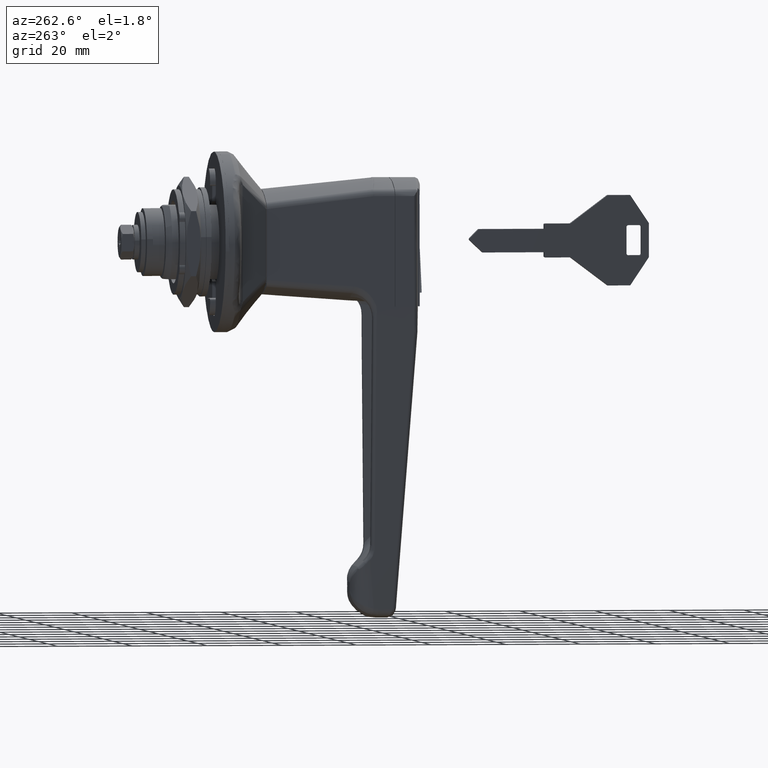
[diagram: clean part render]
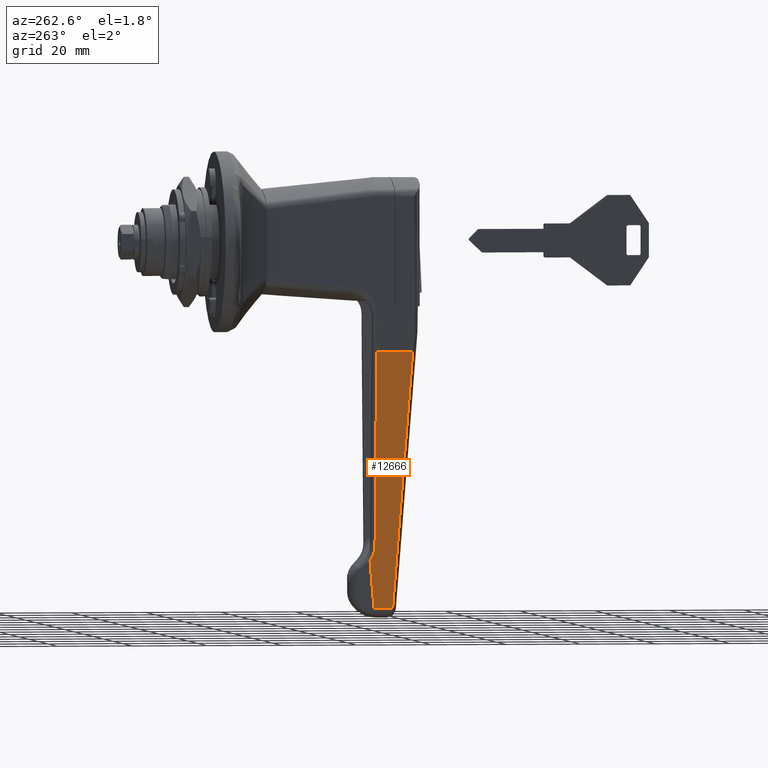
[diagram: same view with one face highlighted and labeled with its STEP entity id]
A machine part, auxiliary view. The second image highlights one B-rep face of the part: STEP entity #12666.
In plain terms, the highlighted face is a freeform B-spline surface patch.
Its self-contained STEP definition (entity closure, byte-faithful):
#6666=CARTESIAN_POINT('',(-42.0,12.073825769527300,-28.897936895261701));
#6667=VERTEX_POINT('',#6666);
#6727=CARTESIAN_POINT('',(-42.0,8.694515463715879,-80.579964860897306));
#6728=VERTEX_POINT('',#6727);
#6742=CARTESIAN_POINT('',(-42.0,12.073825769527300,-28.897936895261701));
#6743=CARTESIAN_POINT('',(-42.0,8.694515463715879,-80.579964860897306));
#6744=QUASI_UNIFORM_CURVE('',1,(#6742,#6743),.UNSPECIFIED.,.F.,.U.);
#6745=EDGE_CURVE('',#6667,#6728,#6744,.T.);
#6816=CARTESIAN_POINT('',(-40.691652699709749,8.428069505302149,-84.654899160476404));
#6817=VERTEX_POINT('',#6816);
#6833=CARTESIAN_POINT('',(-42.0,8.694515463715970,-80.579964860897306));
#6834=CARTESIAN_POINT('',(-42.0,8.547558896826997,-82.827468852060392));
#6835=CARTESIAN_POINT('',(-40.691652699709799,8.428069505302180,-84.654899160476404));
#6843=(BOUNDED_CURVE()B_SPLINE_CURVE(2,(#6833,#6834,#6835),.UNSPECIFIED.,.F.,.U.)CURVE()GEOMETRIC_REPRESENTATION_ITEM()QUASI_UNIFORM_CURVE()RATIONAL_B_SPLINE_CURVE((1.0,0.952127418682943,1.0))REPRESENTATION_ITEM(''));
#6844=EDGE_CURVE('',#6728,#6817,#6843,.T.);
#9193=CARTESIAN_POINT('',(-41.857309074168249,7.601217082741380,-97.300500232609494));
#9194=VERTEX_POINT('',#9193);
#9349=CARTESIAN_POINT('',(-43.0,7.592145216312200,-97.439242287070698));
#9350=VERTEX_POINT('',#9349);
#9364=CARTESIAN_POINT('',(-41.857309074168249,7.601217082741321,-97.300500232609409));
#9365=CARTESIAN_POINT('',(-42.044944047653502,7.598196396070007,-97.346697592098323));
#9366=CARTESIAN_POINT('',(-42.423050191288212,7.593675894850305,-97.415832607623116));
#9367=CARTESIAN_POINT('',(-42.806731902380577,7.592145216312201,-97.439242287070712));
#9368=CARTESIAN_POINT('',(-43.0,7.592145216312200,-97.439242287070698));
#9369=B_SPLINE_CURVE_WITH_KNOTS('',3,(#9364,#9365,#9366,#9367,#9368),.UNSPECIFIED.,.F.,.U.,(4,1,4),(0.0,0.500000000000000,1.0),.UNSPECIFIED.);
#9370=EDGE_CURVE('',#9194,#9350,#9369,.T.);
#9400=CARTESIAN_POINT('',(-46.810766094548299,7.592145216312200,-97.439242287070698));
#9401=VERTEX_POINT('',#9400);
#9431=CARTESIAN_POINT('',(-43.0,7.592145216312200,-97.439242287070698));
#9432=CARTESIAN_POINT('',(-46.810766094548299,7.592145216312200,-97.439242287070698));
#9433=QUASI_UNIFORM_CURVE('',1,(#9431,#9432),.UNSPECIFIED.,.F.,.U.);
#9434=EDGE_CURVE('',#9350,#9401,#9433,.T.);
#9697=CARTESIAN_POINT('',(-46.852808272678203,7.607287954509580,-97.207654374694698));
#9698=VERTEX_POINT('',#9697);
#9712=CARTESIAN_POINT('',(-46.810766094548299,7.592145216312200,-97.439242287070698));
#9713=CARTESIAN_POINT('',(-46.833181107994022,7.597093499282265,-97.363564922254270));
#9714=CARTESIAN_POINT('',(-46.847095688982492,7.602142254482201,-97.286350969162669));
#9715=CARTESIAN_POINT('',(-46.852808272678203,7.607287954509570,-97.207654374694911));
#9716=QUASI_UNIFORM_CURVE('',3,(#9712,#9713,#9714,#9715),.UNSPECIFIED.,.F.,.U.);
#9717=EDGE_CURVE('',#9401,#9698,#9716,.T.);
#10441=CARTESIAN_POINT('',(-40.691652699709671,8.428069505302171,-84.654899160476162));
#10442=CARTESIAN_POINT('',(-40.794435133139793,8.355161308735349,-85.769932440317476));
#10443=CARTESIAN_POINT('',(-40.897217566569893,8.282253112168529,-86.884965720158775));
#10444=CARTESIAN_POINT('',(-41.0,8.209344915601710,-87.999999000000088));
#10445=CARTESIAN_POINT('',(-41.285769691389469,8.006635637981608,-91.100166077536528));
#10446=CARTESIAN_POINT('',(-41.571539382778859,7.803926360361499,-94.200333155072897));
#10447=CARTESIAN_POINT('',(-41.857309074168157,7.601217082741362,-97.300500232609295));
#10448=B_SPLINE_CURVE_WITH_KNOTS('',3,(#10441,#10442,#10443,#10444,#10445,#10446,#10447),.UNSPECIFIED.,.F.,.U.,(4,3,4),(0.435166360910611,0.473723399625362,0.580924919249761),.UNSPECIFIED.);
#10449=EDGE_CURVE('',#6817,#9194,#10448,.T.);
#10964=CARTESIAN_POINT('',(-51.636799094111687,12.073825769527300,-28.897936895261701));
#10965=VERTEX_POINT('',#10964);
#11126=CARTESIAN_POINT('',(-46.852808272678203,7.607287954509580,-97.207654374694698));
#11127=CARTESIAN_POINT('',(-49.346518719111984,9.853537041845728,-62.854281158317264));
#11128=CARTESIAN_POINT('',(-51.636799094111673,12.073825769527280,-28.897936895261850));
#11136=(BOUNDED_CURVE()B_SPLINE_CURVE(2,(#11126,#11127,#11128),.UNSPECIFIED.,.F.,.U.)CURVE()GEOMETRIC_REPRESENTATION_ITEM()QUASI_UNIFORM_CURVE()RATIONAL_B_SPLINE_CURVE((1.0,0.999266857121281,1.0))REPRESENTATION_ITEM(''));
#11137=EDGE_CURVE('',#9698,#10965,#11136,.T.);
#12647=CARTESIAN_POINT('',(-52.183508851600337,12.297685646391519,-25.474299712081610));
#12648=CARTESIAN_POINT('',(-52.183508851600337,7.368285499725391,-100.862877019022700));
#12649=CARTESIAN_POINT('',(-40.144944018650683,12.297685646391519,-25.474299712081610));
#12650=CARTESIAN_POINT('',(-40.144944018650683,7.368285499725391,-100.862877019022700));
#12651=B_SPLINE_SURFACE_WITH_KNOTS('',1,1,((#12647,#12649),(#12648,#12650)),.UNSPECIFIED.,.F.,.F.,.U.,(2,2),(2,2),(0.0,75.549563692787686),(0.0,12.038564832949660),.UNSPECIFIED.);
#12652=CARTESIAN_POINT('',(-42.0,12.073825769527300,-28.897936895261701));
#12653=CARTESIAN_POINT('',(-51.636799094111687,12.073825769527300,-28.897936895261701));
#12654=QUASI_UNIFORM_CURVE('',1,(#12652,#12653),.UNSPECIFIED.,.F.,.U.);
#12655=EDGE_CURVE('',#6667,#10965,#12654,.T.);
#12656=ORIENTED_EDGE('',*,*,#12655,.F.);
#12657=ORIENTED_EDGE('',*,*,#6745,.T.);
#12658=ORIENTED_EDGE('',*,*,#6844,.T.);
#12659=ORIENTED_EDGE('',*,*,#10449,.T.);
#12660=ORIENTED_EDGE('',*,*,#9370,.T.);
#12661=ORIENTED_EDGE('',*,*,#9434,.T.);
#12662=ORIENTED_EDGE('',*,*,#9717,.T.);
#12663=ORIENTED_EDGE('',*,*,#11137,.T.);
#12664=EDGE_LOOP('',(#12656,#12657,#12658,#12659,#12660,#12661,#12662,#12663));
#12665=FACE_OUTER_BOUND('',#12664,.T.);
#12666=ADVANCED_FACE('',(#12665),#12651,.F.);